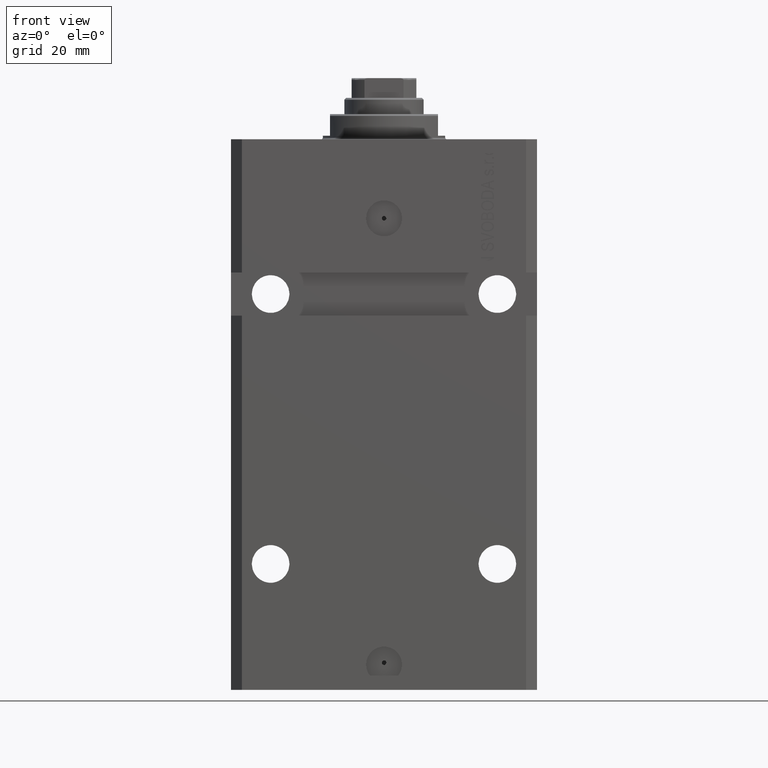
[diagram: clean part render]
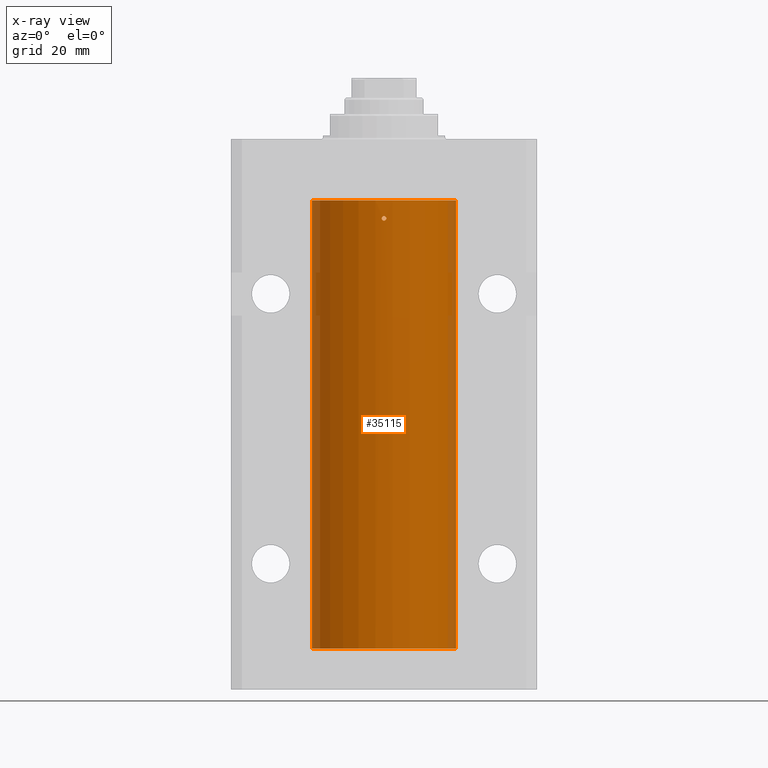
[diagram: x-ray — body ghosted, one internal face saturated and labeled with its STEP entity id]
A machine part, front view, then the same camera in x-ray: the body is ghosted and one INTERNAL B-rep face — a face not visible from any outside direction — is saturated and labeled: STEP entity #35115.
In plain terms, the highlighted cylindrical surface (partial cylindrical patch) has radius 20 mm, axis along (0, 0, 1).
Its self-contained STEP definition (entity closure, byte-faithful):
#60 = EDGE_CURVE ( 'NONE', #35802, #16070, #14492, .T. ) ;
#949 = CARTESIAN_POINT ( 'NONE',  ( 20.00000000000000000, -0.1632180151482494623, -138.3749999999997442 ) ) ;
#1467 = CARTESIAN_POINT ( 'NONE',  ( 0.5570899181683264256, -19.99257333899569744, -22.32695694742785619 ) ) ;
#2073 = CARTESIAN_POINT ( 'NONE',  ( 20.00000000000010303, 3.555666336392955914E-13, -23.37499999999667111 ) ) ;
#2624 = DIRECTION ( 'NONE',  ( -0.000000000000000000, -0.000000000000000000, 1.000000000000000000 ) ) ;
#2782 = VECTOR ( 'NONE', #26883, 1000.000000000000000 ) ;
#3380 = CARTESIAN_POINT ( 'NONE',  ( 19.99766246719553209, -0.3267907458473790494, -139.5571608607968699 ) ) ;
#3875 = CARTESIAN_POINT ( 'NONE',  ( 19.99766790699044350, -0.3264769477312324808, -23.44266063830005464 ) ) ;
#4204 = CARTESIAN_POINT ( 'NONE',  ( 0.4995363768272698679, -19.99384383563509360, -21.61563220462100432 ) ) ;
#4397 = CARTESIAN_POINT ( 'NONE',  ( -0.6250000000001382228, -19.99023198964934167, -22.16313189841578080 ) ) ;
#4886 = EDGE_CURVE ( 'NONE', #41626, #20333, #35690, .T. ) ;
#4907 = ORIENTED_EDGE ( 'NONE', *, *, #29886, .T. ) ;
#5027 = CARTESIAN_POINT ( 'NONE',  ( 19.99023198964933457, -0.6250000000000760503, -23.83503171949486443 ) ) ;
#5076 = CARTESIAN_POINT ( 'NONE',  ( 19.99766790699043995, -0.3264769477312507995, -138.4426606383000262 ) ) ;
#6186 = ORIENTED_EDGE ( 'NONE', *, *, #4886, .T. ) ;
#6639 = ORIENTED_EDGE ( 'NONE', *, *, #60, .T. ) ;
#7724 = CARTESIAN_POINT ( 'NONE',  ( 0.000000000000000000, 0.000000000000000000, -17.00000000000000000 ) ) ;
#7856 = CARTESIAN_POINT ( 'NONE',  ( 0.1632920704146597346, -19.99999818881353164, -21.37505795797077823 ) ) ;
#8054 = CARTESIAN_POINT ( 'NONE',  ( -0.6250000000033326675, -19.99023198964924219, -21.99999999999967315 ) ) ;
#8177 = CIRCLE ( 'NONE', #12068, 20.00000000000000000 ) ;
#8691 = CARTESIAN_POINT ( 'NONE',  ( 19.99023198964934167, -0.6250000000000761613, -24.00000000000000000 ) ) ;
#8929 = VERTEX_POINT ( 'NONE', #12245 ) ;
#9002 = B_SPLINE_CURVE_WITH_KNOTS ( 'NONE', 3,
 ( #42908, #16613, #9313, #12726, #38518, #31461 ),
 .UNSPECIFIED., .F., .F.,
 ( 4, 2, 4 ),
 ( 0.002931526102908778124, 0.003419696219975600082, 0.003907866337042422041 ),
 .UNSPECIFIED. ) ;
#9313 = CARTESIAN_POINT ( 'NONE',  ( 19.99256494106949944, -0.5573539455062669346, -24.32646132359606383 ) ) ;
#10410 = DIRECTION ( 'NONE',  ( 0.000000000000000000, 0.000000000000000000, 1.000000000000000000 ) ) ;
#10741 = AXIS2_PLACEMENT_3D ( 'NONE', #13465, #32194, #23940 ) ;
#11235 = CARTESIAN_POINT ( 'NONE',  ( 20.00000000000000000, -2.179639976041390721E-15, -139.6249999999999716 ) ) ;
#11953 = CARTESIAN_POINT ( 'NONE',  ( -0.1653813832397391104, -19.99999568866902067, -22.62486203736067125 ) ) ;
#12068 = AXIS2_PLACEMENT_3D ( 'NONE', #30464, #14648, #37039 ) ;
#12236 = CARTESIAN_POINT ( 'NONE',  ( -0.6249999999998574474, -19.99023198964934878, -21.83683113816865529 ) ) ;
#12245 = CARTESIAN_POINT ( 'NONE',  ( -0.6250000000033326675, -19.99023198964924219, -21.99999999999967315 ) ) ;
#12426 = CARTESIAN_POINT ( 'NONE',  ( 0.3261666526553446133, -19.99767369487616264, -22.55755299038902706 ) ) ;
#12726 = CARTESIAN_POINT ( 'NONE',  ( 19.99766246719553209, -0.3267907458473866544, -24.55716086079692317 ) ) ;
#12817 = CARTESIAN_POINT ( 'NONE',  ( 19.99257096259850286, -0.5571491910957594440, -23.67319862246101181 ) ) ;
#12939 = VERTEX_POINT ( 'NONE', #44259 ) ;
#12986 = EDGE_CURVE ( 'NONE', #45528, #20912, #18140, .T. ) ;
#13223 = FACE_OUTER_BOUND ( 'NONE', #23353, .T. ) ;
#13465 = CARTESIAN_POINT ( 'NONE',  ( 0.000000000000000000, 0.000000000000000000, -141.5999999999999943 ) ) ;
#13681 = CARTESIAN_POINT ( 'NONE',  ( 20.00000000000000000, 0.000000000000000000, -141.5999999999999943 ) ) ;
#14384 = LINE ( 'NONE', #13681, #39313 ) ;
#14492 = B_SPLINE_CURVE_WITH_KNOTS ( 'NONE', 3,
 ( #41376, #31316, #3875, #12817, #5027, #8691 ),
 .UNSPECIFIED., .F., .F.,
 ( 4, 2, 4 ),
 ( 0.001954154509844058078, 0.002442840306376418101, 0.002931526102908778124 ),
 .UNSPECIFIED. ) ;
#14648 = DIRECTION ( 'NONE',  ( 0.000000000000000000, 0.000000000000000000, 1.000000000000000000 ) ) ;
#15264 = VERTEX_POINT ( 'NONE', #33152 ) ;
#15392 = CARTESIAN_POINT ( 'NONE',  ( 0.5459793025363884889, -19.99257092108152634, -21.68496684531850249 ) ) ;
#15669 = CARTESIAN_POINT ( 'NONE',  ( -20.00000000000000000, 2.449293598294706513E-15, -141.5999999999999943 ) ) ;
#15883 = CARTESIAN_POINT ( 'NONE',  ( 0.3265143537867915002, -19.99766736494331809, -21.44267231150418240 ) ) ;
#16070 = VERTEX_POINT ( 'NONE', #40761 ) ;
#16613 = CARTESIAN_POINT ( 'NONE',  ( 19.99023198964934167, -0.6250000000000763833, -24.16479419982728061 ) ) ;
#16703 = CARTESIAN_POINT ( 'NONE',  ( -20.00000000000000000, 2.449293598294706513E-15, -141.5999999999999943 ) ) ;
#17118 = CYLINDRICAL_SURFACE ( 'NONE', #10741, 20.00000000000000000 ) ;
#17750 = EDGE_CURVE ( 'NONE', #30561, #12939, #8177, .T. ) ;
#18140 = CIRCLE ( 'NONE', #24363, 20.00000000000000000 ) ;
#18598 = ORIENTED_EDGE ( 'NONE', *, *, #12986, .T. ) ;
#18927 = DIRECTION ( 'NONE',  ( 1.000000000000000000, 0.000000000000000000, 0.000000000000000000 ) ) ;
#18962 = CARTESIAN_POINT ( 'NONE',  ( 20.00000000000000000, -2.179639976041390721E-15, -139.6249999999999716 ) ) ;
#19052 = CARTESIAN_POINT ( 'NONE',  ( -0.1628481006860607039, -20.00000180872260813, -21.37494212087287337 ) ) ;
#19212 = CARTESIAN_POINT ( 'NONE',  ( 20.00000000000010303, 3.555666311577537537E-13, -138.3749999999966178 ) ) ;
#19385 = CARTESIAN_POINT ( 'NONE',  ( 0.6250000000000026645, -19.99023198964934522, -22.00000000000000000 ) ) ;
#19776 = VERTEX_POINT ( 'NONE', #11235 ) ;
#19985 = CARTESIAN_POINT ( 'NONE',  ( -0.5574110886242996665, -19.99256263711735215, -22.32630989244538711 ) ) ;
#20271 = CARTESIAN_POINT ( 'NONE',  ( 20.00000000000010303, 3.555666311577537537E-13, -138.3749999999966178 ) ) ;
#20333 = VERTEX_POINT ( 'NONE', #20824 ) ;
#20824 = CARTESIAN_POINT ( 'NONE',  ( 19.99023198964933812, -0.6250000000000839329, -138.9999999999999432 ) ) ;
#20912 = VERTEX_POINT ( 'NONE', #37613 ) ;
#20949 = ORIENTED_EDGE ( 'NONE', *, *, #17750, .F. ) ;
#21135 = LINE ( 'NONE', #35975, #48092 ) ;
#22055 = EDGE_CURVE ( 'NONE', #20333, #19776, #47991, .T. ) ;
#22506 = B_SPLINE_CURVE_WITH_KNOTS ( 'NONE', 3,
 ( #33884, #26116, #30002, #15392, #4204, #15883, #7856, #19052, #45102, #45594, #12236, #26604 ),
 .UNSPECIFIED., .F., .F.,
 ( 4, 2, 2, 2, 2, 4 ),
 ( 0.000000000000000000, 0.0002442693132668051579, 0.0004885386265336103158, 0.0009770772530672282210, 0.001465615879600846126, 0.001954154506134463815 ),
 .UNSPECIFIED. ) ;
#22850 = CARTESIAN_POINT ( 'NONE',  ( 20.00000000000000000, -0.1650670266421448706, -139.6250000000000000 ) ) ;
#22899 = CARTESIAN_POINT ( 'NONE',  ( 0.6250000000000026645, -19.99023198964934522, -22.16515421183406076 ) ) ;
#23353 = EDGE_LOOP ( 'NONE', ( #20949, #4907, #18598, #42483, #6639, #29352, #46279, #6186, #28855, #26341 ) ) ;
#23940 = DIRECTION ( 'NONE',  ( 1.000000000000000000, 0.000000000000000000, 0.000000000000000000 ) ) ;
#23956 = B_SPLINE_CURVE_WITH_KNOTS ( 'NONE', 3,
 ( #8054, #4397, #19985, #26801, #11953, #34084, #12426, #1467, #22899, #31165 ),
 .UNSPECIFIED., .F., .F.,
 ( 4, 2, 2, 2, 4 ),
 ( 0.001954154506134463815, 0.002442582461700956980, 0.002931010417267450145, 0.003419438372833943311, 0.003907866328400436476 ),
 .UNSPECIFIED. ) ;
#24363 = AXIS2_PLACEMENT_3D ( 'NONE', #7724, #10410, #18927 ) ;
#25715 = LINE ( 'NONE', #47863, #34216 ) ;
#25950 = EDGE_CURVE ( 'NONE', #28701, #8929, #22506, .T. ) ;
#26116 = CARTESIAN_POINT ( 'NONE',  ( 0.6250000000000028866, -19.99023198964935233, -21.91740418326171280 ) ) ;
#26341 = ORIENTED_EDGE ( 'NONE', *, *, #26934, .F. ) ;
#26604 = CARTESIAN_POINT ( 'NONE',  ( -0.6250000000033326675, -19.99023198964924219, -21.99999999999967315 ) ) ;
#26801 = CARTESIAN_POINT ( 'NONE',  ( -0.3270944962368909081, -19.99765679051705902, -22.55695103748945129 ) ) ;
#26883 = DIRECTION ( 'NONE',  ( -0.000000000000000000, -0.000000000000000000, 1.000000000000000000 ) ) ;
#26934 = EDGE_CURVE ( 'NONE', #12939, #19776, #14384, .T. ) ;
#27019 = EDGE_LOOP ( 'NONE', ( #28555, #41755 ) ) ;
#28555 = ORIENTED_EDGE ( 'NONE', *, *, #25950, .T. ) ;
#28701 = VERTEX_POINT ( 'NONE', #19385 ) ;
#28855 = ORIENTED_EDGE ( 'NONE', *, *, #22055, .T. ) ;
#29000 = DIRECTION ( 'NONE',  ( -0.000000000000000000, -0.000000000000000000, 1.000000000000000000 ) ) ;
#29352 = ORIENTED_EDGE ( 'NONE', *, *, #41630, .T. ) ;
#29669 = CARTESIAN_POINT ( 'NONE',  ( 19.99023198964933812, -0.6250000000000839329, -138.9999999999999432 ) ) ;
#29886 = EDGE_CURVE ( 'NONE', #30561, #45528, #42212, .T. ) ;
#30002 = CARTESIAN_POINT ( 'NONE',  ( 0.6087363597162602780, -19.99075850180857117, -21.83635608258754957 ) ) ;
#30464 = CARTESIAN_POINT ( 'NONE',  ( 0.000000000000000000, 0.000000000000000000, -141.5999999999999943 ) ) ;
#30561 = VERTEX_POINT ( 'NONE', #16703 ) ;
#31165 = CARTESIAN_POINT ( 'NONE',  ( 0.6250000000000026645, -19.99023198964934522, -22.00000000000000000 ) ) ;
#31316 = CARTESIAN_POINT ( 'NONE',  ( 20.00000000000000355, -0.1632180151482442720, -23.37499999999983658 ) ) ;
#31461 = CARTESIAN_POINT ( 'NONE',  ( 20.00000000000000000, -1.112928376255647276E-15, -24.62500000000000000 ) ) ;
#32194 = DIRECTION ( 'NONE',  ( -0.000000000000000000, -0.000000000000000000, 1.000000000000000000 ) ) ;
#33152 = CARTESIAN_POINT ( 'NONE',  ( 20.00000000000000000, -1.112928376255647276E-15, -24.62500000000000000 ) ) ;
#33238 = DIRECTION ( 'NONE',  ( -0.000000000000000000, -0.000000000000000000, 1.000000000000000000 ) ) ;
#33552 = CARTESIAN_POINT ( 'NONE',  ( 19.99023198964934167, -0.6250000000000767164, -139.1647941998272131 ) ) ;
#33884 = CARTESIAN_POINT ( 'NONE',  ( 0.6250000000000026645, -19.99023198964934522, -22.00000000000000000 ) ) ;
#34039 = CARTESIAN_POINT ( 'NONE',  ( 19.99023198964933812, -0.6250000000000839329, -138.9999999999999432 ) ) ;
#34084 = CARTESIAN_POINT ( 'NONE',  ( 0.1643369734423495987, -20.00000429769607280, -22.62513752632251851 ) ) ;
#34216 = VECTOR ( 'NONE', #33238, 1000.000000000000000 ) ;
#35115 = ADVANCED_FACE ( 'NONE', ( #46575, #13223 ), #17118, .F. ) ;
#35690 = B_SPLINE_CURVE_WITH_KNOTS ( 'NONE', 3,
 ( #19212, #949, #5076, #42093, #41361, #34039 ),
 .UNSPECIFIED., .F., .F.,
 ( 4, 2, 4 ),
 ( 0.001954154509844120095, 0.002442840306376502235, 0.002931526102908884376 ),
 .UNSPECIFIED. ) ;
#35802 = VERTEX_POINT ( 'NONE', #2073 ) ;
#35975 = CARTESIAN_POINT ( 'NONE',  ( 20.00000000000000000, 0.000000000000000000, -141.5999999999999943 ) ) ;
#36424 = CARTESIAN_POINT ( 'NONE',  ( -20.00000000000000000, 2.449293598294706513E-15, -17.00000000000000000 ) ) ;
#36707 = EDGE_CURVE ( 'NONE', #35802, #20912, #21135, .T. ) ;
#37039 = DIRECTION ( 'NONE',  ( 1.000000000000000000, 0.000000000000000000, 0.000000000000000000 ) ) ;
#37613 = CARTESIAN_POINT ( 'NONE',  ( 20.00000000000000000, 0.000000000000000000, -17.00000000000000000 ) ) ;
#38518 = CARTESIAN_POINT ( 'NONE',  ( 19.99999999999999645, -0.1650670266421418453, -24.62500000000001421 ) ) ;
#39313 = VECTOR ( 'NONE', #29000, 1000.000000000000000 ) ;
#40761 = CARTESIAN_POINT ( 'NONE',  ( 19.99023198964934167, -0.6250000000000761613, -24.00000000000000000 ) ) ;
#41361 = CARTESIAN_POINT ( 'NONE',  ( 19.99023198964933812, -0.6250000000000911493, -138.8350317194948786 ) ) ;
#41376 = CARTESIAN_POINT ( 'NONE',  ( 20.00000000000010303, 3.555666336392955914E-13, -23.37499999999667111 ) ) ;
#41626 = VERTEX_POINT ( 'NONE', #20271 ) ;
#41630 = EDGE_CURVE ( 'NONE', #16070, #15264, #9002, .T. ) ;
#41755 = ORIENTED_EDGE ( 'NONE', *, *, #43921, .T. ) ;
#42093 = CARTESIAN_POINT ( 'NONE',  ( 19.99257096259849931, -0.5571491910957772076, -138.6731986224609727 ) ) ;
#42212 = LINE ( 'NONE', #15669, #2782 ) ;
#42483 = ORIENTED_EDGE ( 'NONE', *, *, #36707, .F. ) ;
#42541 = EDGE_CURVE ( 'NONE', #41626, #15264, #25715, .T. ) ;
#42908 = CARTESIAN_POINT ( 'NONE',  ( 19.99023198964934167, -0.6250000000000761613, -24.00000000000000000 ) ) ;
#43921 = EDGE_CURVE ( 'NONE', #8929, #28701, #23956, .T. ) ;
#44259 = CARTESIAN_POINT ( 'NONE',  ( 20.00000000000000000, 0.000000000000000000, -141.5999999999999943 ) ) ;
#44774 = CARTESIAN_POINT ( 'NONE',  ( 19.99256494106949944, -0.5573539455062642700, -139.3264613235960496 ) ) ;
#45102 = CARTESIAN_POINT ( 'NONE',  ( -0.3251162203622516289, -19.99769811469285230, -21.44128795971509405 ) ) ;
#45528 = VERTEX_POINT ( 'NONE', #36424 ) ;
#45594 = CARTESIAN_POINT ( 'NONE',  ( -0.5585582113630487289, -19.99253968778482360, -21.67461956847272830 ) ) ;
#46279 = ORIENTED_EDGE ( 'NONE', *, *, #42541, .F. ) ;
#46575 = FACE_BOUND ( 'NONE', #27019, .T. ) ;
#47863 = CARTESIAN_POINT ( 'NONE',  ( 20.00000000000000000, 0.000000000000000000, -141.5999999999999943 ) ) ;
#47991 = B_SPLINE_CURVE_WITH_KNOTS ( 'NONE', 3,
 ( #29669, #33552, #44774, #3380, #22850, #18962 ),
 .UNSPECIFIED., .F., .F.,
 ( 4, 2, 4 ),
 ( 0.002931526102908884376, 0.003419696219975714574, 0.003907866337042544339 ),
 .UNSPECIFIED. ) ;
#48092 = VECTOR ( 'NONE', #2624, 1000.000000000000000 ) ;